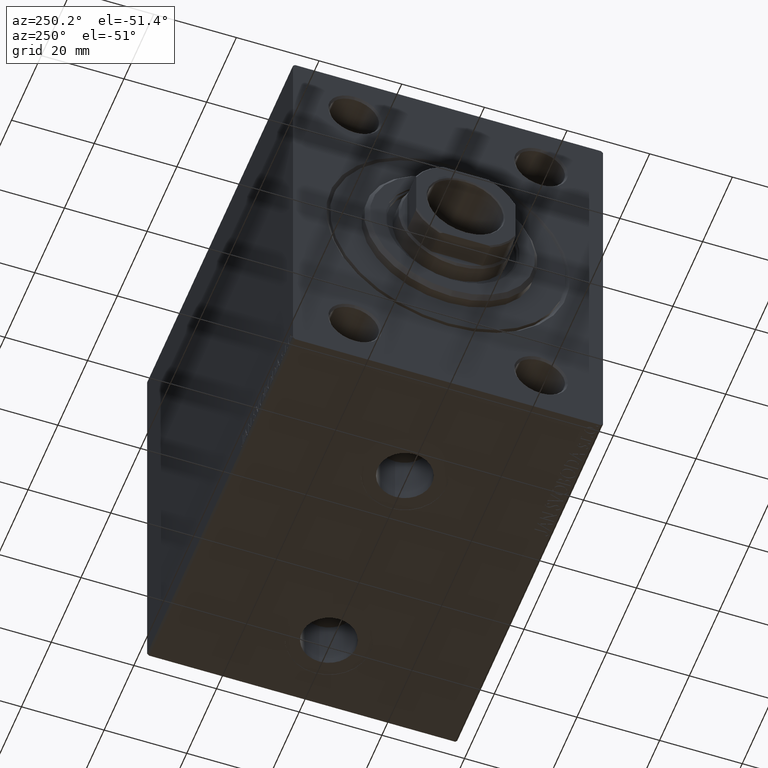
[diagram: clean part render]
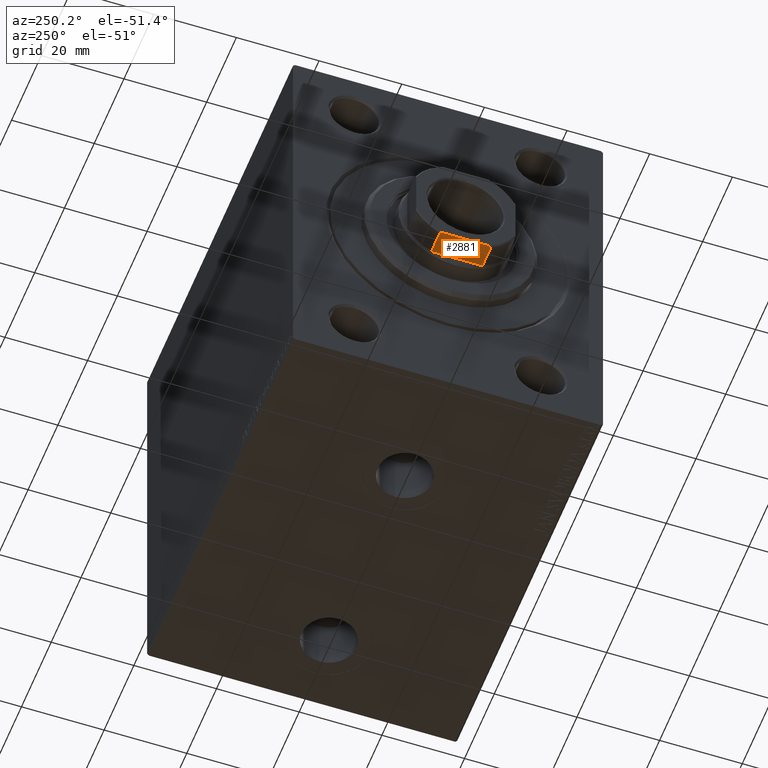
[diagram: same view with one face highlighted and labeled with its STEP entity id]
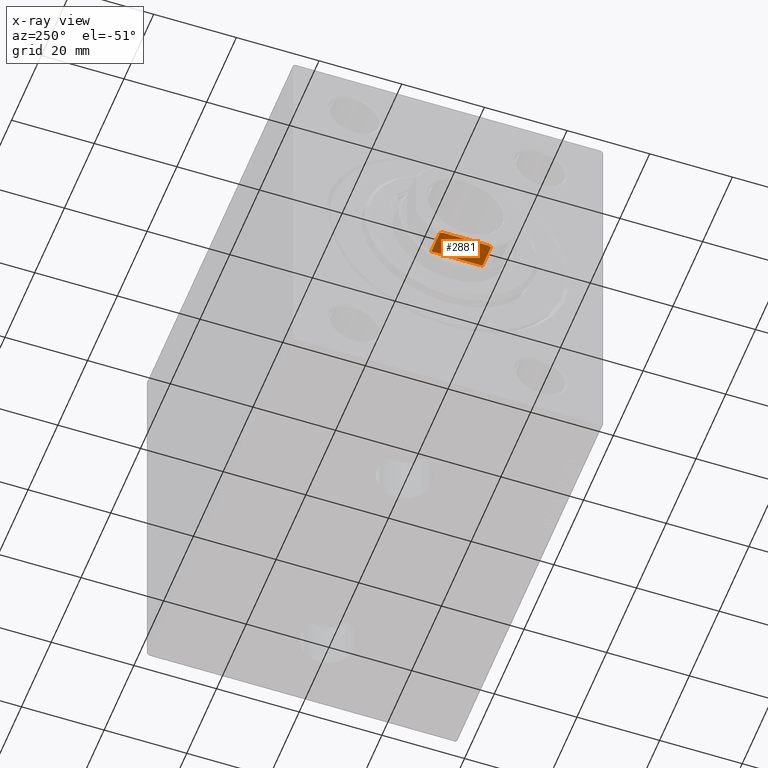
[diagram: x-ray of the same camera — body ghosted, the highlighted face saturated]
A machine part, auxiliary view. The second image highlights one B-rep face of the part: STEP entity #2881.
The next image is the same camera in x-ray: the body ghosted, the highlighted face saturated — about 0% of this face is hidden behind the body in this view.
In plain terms, the highlighted planar face has unit normal (0, 0, 1).
Its self-contained STEP definition (entity closure, byte-faithful):
#191 = CARTESIAN_POINT ( 'NONE',  ( -11.99999999999999645, 6.184658438426499316, 89.99999999999998579 ) ) ;
#323 = CARTESIAN_POINT ( 'NONE',  ( -12.00000000000000000, -5.499090833947057888, 96.00000000000000000 ) ) ;
#325 = CARTESIAN_POINT ( 'NONE',  ( -12.00000000000000178, 5.957846001622731258, 95.80390795934954440 ) ) ;
#2275 = LINE ( 'NONE', #39610, #13485 ) ;
#2881 = ADVANCED_FACE ( 'NONE', ( #34636 ), #14588, .F. ) ;
#4112 = VECTOR ( 'NONE', #29772, 1000.000000000000000 ) ;
#4225 = B_SPLINE_CURVE_WITH_KNOTS ( 'NONE', 3,
 ( #10199, #16479, #33833, #323 ),
 .UNSPECIFIED., .F., .F.,
 ( 4, 4 ),
 ( 0.000000000000000000, 0.0007483334419305768832 ),
 .UNSPECIFIED. ) ;
#5405 = ORIENTED_EDGE ( 'NONE', *, *, #9722, .F. ) ;
#5457 = VERTEX_POINT ( 'NONE', #18953 ) ;
#7644 = ORIENTED_EDGE ( 'NONE', *, *, #39063, .F. ) ;
#7846 = VERTEX_POINT ( 'NONE', #12067 ) ;
#8823 = CARTESIAN_POINT ( 'NONE',  ( -11.99999999999999645, 6.184658438426501093, -0.001000000000001000089 ) ) ;
#9722 = EDGE_CURVE ( 'NONE', #12462, #36111, #15381, .T. ) ;
#10117 = CARTESIAN_POINT ( 'NONE',  ( -12.00000000000000355, 11.99999999999999645, 90.00000000000000000 ) ) ;
#10199 = CARTESIAN_POINT ( 'NONE',  ( -11.99999999999999822, -6.184658438426497540, 95.70000000000001705 ) ) ;
#10360 = ORIENTED_EDGE ( 'NONE', *, *, #31388, .T. ) ;
#11539 = VERTEX_POINT ( 'NONE', #191 ) ;
#12025 = CARTESIAN_POINT ( 'NONE',  ( -12.00000000000000355, 11.99999999999999645, 96.00000000000000000 ) ) ;
#12067 = CARTESIAN_POINT ( 'NONE',  ( -11.99999999999999822, -6.184658438426497540, 95.70000000000001705 ) ) ;
#12462 = VERTEX_POINT ( 'NONE', #33200 ) ;
#13485 = VECTOR ( 'NONE', #26547, 1000.000000000000000 ) ;
#13496 = LINE ( 'NONE', #10117, #35042 ) ;
#14243 = CARTESIAN_POINT ( 'NONE',  ( -12.00000000000000178, 5.499090833947057000, 96.00000000000000000 ) ) ;
#14375 = DIRECTION ( 'NONE',  ( 1.000000000000000000, 2.168404344971008868E-16, -0.000000000000000000 ) ) ;
#14588 = PLANE ( 'NONE',  #37581 ) ;
#15381 = LINE ( 'NONE', #12025, #18854 ) ;
#16479 = CARTESIAN_POINT ( 'NONE',  ( -11.99999999999999822, -5.957846001622732146, 95.80390795934954440 ) ) ;
#18285 = CARTESIAN_POINT ( 'NONE',  ( -12.00000000000000178, 5.729389212963475586, 95.90405820415742255 ) ) ;
#18854 = VECTOR ( 'NONE', #42615, 1000.000000000000000 ) ;
#18953 = CARTESIAN_POINT ( 'NONE',  ( -11.99999999999999822, -6.184658438426497540, 89.99999999999998579 ) ) ;
#20828 = CARTESIAN_POINT ( 'NONE',  ( -11.99999999999999645, 6.184658438426501093, 95.70000000000001705 ) ) ;
#21949 = B_SPLINE_CURVE_WITH_KNOTS ( 'NONE', 3,
 ( #14243, #18285, #325, #28201 ),
 .UNSPECIFIED., .F., .F.,
 ( 4, 4 ),
 ( 0.000000000000000000, 0.0007483334419305817621 ),
 .UNSPECIFIED. ) ;
#24801 = CARTESIAN_POINT ( 'NONE',  ( -12.00000000000000000, -5.499090833947057888, 96.00000000000000000 ) ) ;
#26155 = LINE ( 'NONE', #8823, #4112 ) ;
#26547 = DIRECTION ( 'NONE',  ( -0.000000000000000000, -0.000000000000000000, 1.000000000000000000 ) ) ;
#26997 = DIRECTION ( 'NONE',  ( 2.168404344971008868E-16, -1.000000000000000000, 0.000000000000000000 ) ) ;
#27661 = CARTESIAN_POINT ( 'NONE',  ( -12.00000000000000355, 11.99999999999999645, 96.00000000000000000 ) ) ;
#28201 = CARTESIAN_POINT ( 'NONE',  ( -11.99999999999999645, 6.184658438426501093, 95.70000000000001705 ) ) ;
#28831 = ORIENTED_EDGE ( 'NONE', *, *, #32321, .T. ) ;
#28924 = ORIENTED_EDGE ( 'NONE', *, *, #41221, .T. ) ;
#29772 = DIRECTION ( 'NONE',  ( -0.000000000000000000, -0.000000000000000000, 1.000000000000000000 ) ) ;
#31388 = EDGE_CURVE ( 'NONE', #5457, #7846, #2275, .T. ) ;
#32321 = EDGE_CURVE ( 'NONE', #11539, #5457, #13496, .T. ) ;
#33200 = CARTESIAN_POINT ( 'NONE',  ( -12.00000000000000178, 5.499090833947057000, 96.00000000000000000 ) ) ;
#33833 = CARTESIAN_POINT ( 'NONE',  ( -12.00000000000000000, -5.729389212963478251, 95.90405820415742255 ) ) ;
#34636 = FACE_OUTER_BOUND ( 'NONE', #39634, .T. ) ;
#35042 = VECTOR ( 'NONE', #26997, 1000.000000000000000 ) ;
#36111 = VERTEX_POINT ( 'NONE', #24801 ) ;
#37581 = AXIS2_PLACEMENT_3D ( 'NONE', #27661, #14375, #38014 ) ;
#38014 = DIRECTION ( 'NONE',  ( -2.168404344971008868E-16, 1.000000000000000000, 0.000000000000000000 ) ) ;
#39063 = EDGE_CURVE ( 'NONE', #11539, #44209, #26155, .T. ) ;
#39285 = ORIENTED_EDGE ( 'NONE', *, *, #43325, .T. ) ;
#39610 = CARTESIAN_POINT ( 'NONE',  ( -11.99999999999999822, -6.184658438426497540, -0.001000000000001000089 ) ) ;
#39634 = EDGE_LOOP ( 'NONE', ( #10360, #39285, #5405, #28924, #7644, #28831 ) ) ;
#41221 = EDGE_CURVE ( 'NONE', #12462, #44209, #21949, .T. ) ;
#42615 = DIRECTION ( 'NONE',  ( 2.168404344971008868E-16, -1.000000000000000000, 0.000000000000000000 ) ) ;
#43325 = EDGE_CURVE ( 'NONE', #7846, #36111, #4225, .T. ) ;
#44209 = VERTEX_POINT ( 'NONE', #20828 ) ;